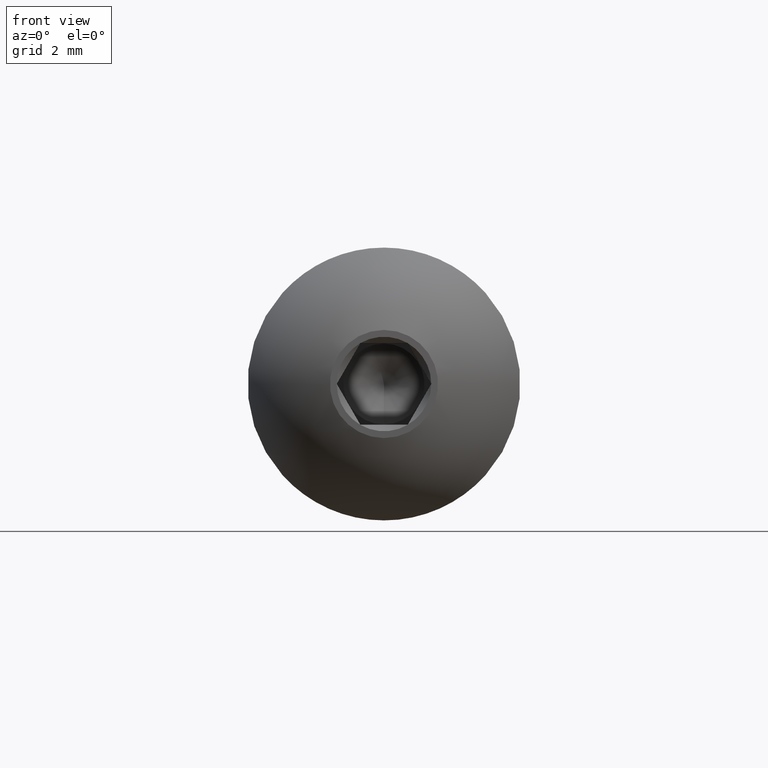
[diagram: clean part render]
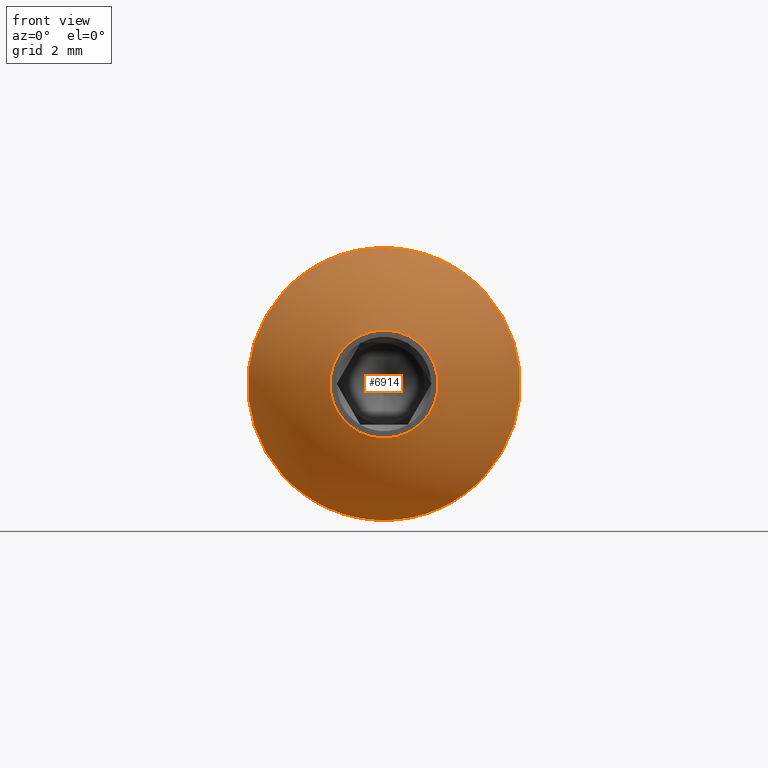
[diagram: same view with one face highlighted and labeled with its STEP entity id]
A machine part, front view. The second image highlights one B-rep face of the part: STEP entity #6914.
In plain terms, the highlighted spherical surface has radius 5.7585 mm.
Its self-contained STEP definition (entity closure, byte-faithful):
#1515 = EDGE_LOOP ( 'NONE', ( #13991 ) ) ;
#2618 = EDGE_CURVE ( 'NONE', #14371, #14371, #5377, .T. ) ;
#3731 = DIRECTION ( 'NONE',  ( -0.0000000000000000000, -1.000000000000000000, -0.0000000000000000000 ) ) ;
#4011 = AXIS2_PLACEMENT_3D ( 'NONE', #5695, #6943, #8005 ) ;
#4283 = ORIENTED_EDGE ( 'NONE', *, *, #2618, .T. ) ;
#4579 = CARTESIAN_POINT ( 'NONE',  ( 0.0000000000000000000, 2.550000000000000300, 0.0000000000000000000 ) ) ;
#4921 = CIRCLE ( 'NONE', #7169, 1.982050807568877600 ) ;
#5377 = CIRCLE ( 'NONE', #13525, 5.000000000000000900 ) ;
#5695 = CARTESIAN_POINT ( 'NONE',  ( 0.0000000000000000000, 5.406661685532464300, 0.0000000000000000000 ) ) ;
#6914 = ADVANCED_FACE ( 'NONE', ( #14651, #13575 ), #13039, .T. ) ;
#6943 = DIRECTION ( 'NONE',  ( 0.0000000000000000000, 0.0000000000000000000, 1.000000000000000000 ) ) ;
#7169 = AXIS2_PLACEMENT_3D ( 'NONE', #7357, #13306, #8720 ) ;
#7357 = CARTESIAN_POINT ( 'NONE',  ( 0.0000000000000000000, 0.0000000000000000000, 0.0000000000000000000 ) ) ;
#7525 = VERTEX_POINT ( 'NONE', #11165 ) ;
#8005 = DIRECTION ( 'NONE',  ( 1.000000000000000000, 0.0000000000000000000, 0.0000000000000000000 ) ) ;
#8720 = DIRECTION ( 'NONE',  ( 0.0000000000000000000, 0.0000000000000000000, -1.000000000000000000 ) ) ;
#10536 = DIRECTION ( 'NONE',  ( 0.0000000000000000000, 0.0000000000000000000, -1.000000000000000000 ) ) ;
#10811 = CARTESIAN_POINT ( 'NONE',  ( 0.0000000000000000000, 2.550000000000000300, -5.000000000000000900 ) ) ;
#11165 = CARTESIAN_POINT ( 'NONE',  ( 0.0000000000000000000, 0.0000000000000000000, -1.982050807568877600 ) ) ;
#11321 = EDGE_CURVE ( 'NONE', #7525, #7525, #4921, .T. ) ;
#13039 = SPHERICAL_SURFACE ( 'NONE', #4011, 5.758516821681533700 ) ;
#13306 = DIRECTION ( 'NONE',  ( -0.0000000000000000000, -1.000000000000000000, -0.0000000000000000000 ) ) ;
#13405 = EDGE_LOOP ( 'NONE', ( #4283 ) ) ;
#13525 = AXIS2_PLACEMENT_3D ( 'NONE', #4579, #3731, #10536 ) ;
#13575 = FACE_OUTER_BOUND ( 'NONE', #1515, .T. ) ;
#13991 = ORIENTED_EDGE ( 'NONE', *, *, #11321, .F. ) ;
#14371 = VERTEX_POINT ( 'NONE', #10811 ) ;
#14651 = FACE_OUTER_BOUND ( 'NONE', #13405, .T. ) ;